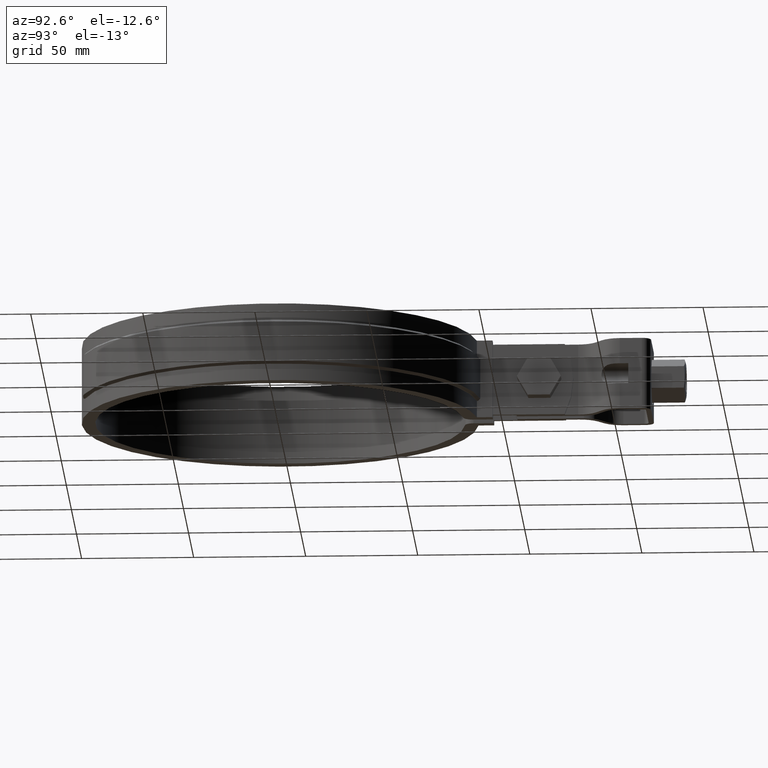
[diagram: clean part render]
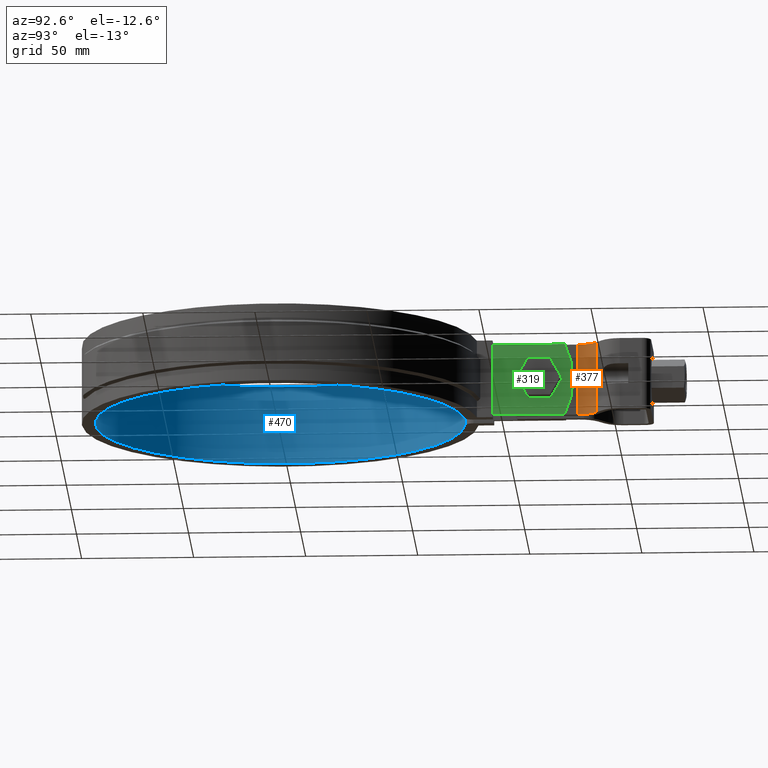
[diagram: same view with three faces highlighted in distinct colors, each labeled with its STEP entity id]
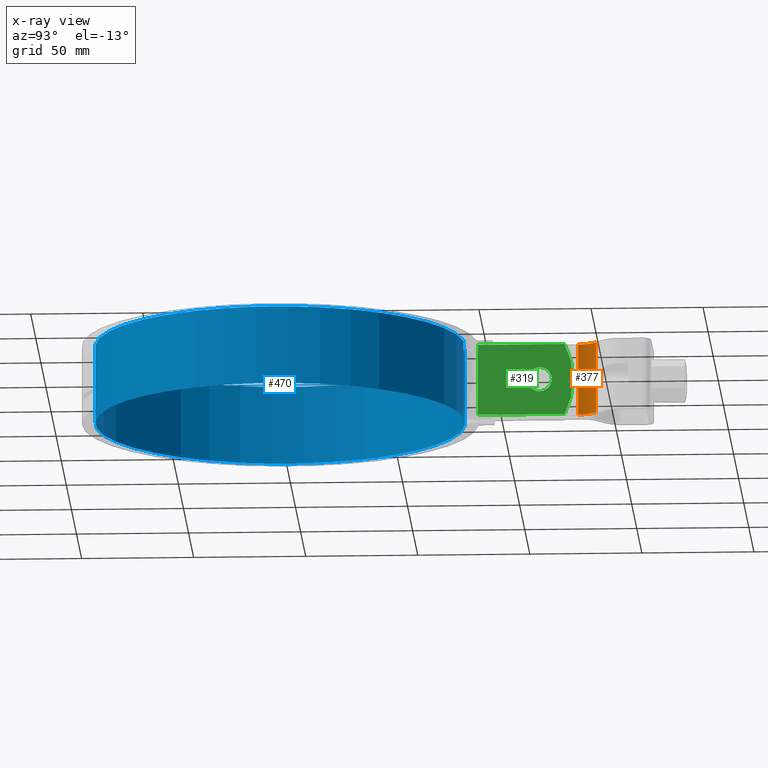
[diagram: x-ray of the same camera — body ghosted, the three highlighted faces saturated]
A machine part, auxiliary view with three faces highlighted in distinct colors.
The next image is the same camera in x-ray (body ghosted, the three faces saturated) — at least one of them is partly hidden behind the body in this view.
Their STEP definitions:

[orange] entity #377 — the highlighted cylindrical surface (edge-blend (fillet) strip) has radius 10 mm, axis along (-0, 0, 1).
#377 = ADVANCED_FACE( '', ( #627 ), #628, .F. );
#627 = FACE_OUTER_BOUND( '', #1381, .T. );
#628 = CYLINDRICAL_SURFACE( '', #1382, 9.99999999999801 );
#1381 = EDGE_LOOP( '', ( #3324, #3325, #3326, #3327 ) );
#1382 = AXIS2_PLACEMENT_3D( '', #3328, #3329, #3330 );
#3324 = ORIENTED_EDGE( '', *, *, #5173, .F. );
#3325 = ORIENTED_EDGE( '', *, *, #5129, .F. );
#3326 = ORIENTED_EDGE( '', *, *, #5077, .T. );
#3327 = ORIENTED_EDGE( '', *, *, #5186, .T. );
#3328 = CARTESIAN_POINT( '', ( 15.0000000000000, 133.144549009249, -31.9999999999894 ) );
#3329 = DIRECTION( '', ( -9.11521279052786E-016, 1.75137682134619E-013, 1.00000000000000 ) );
#3330 = DIRECTION( '', ( -3.03451482752472E-016, 1.00000000000000, -1.75137682134619E-013 ) );
#5077 = EDGE_CURVE( '', #5650, #5648, #5651, .F. );
#5129 = EDGE_CURVE( '', #5650, #5740, #5743, .T. );
#5173 = EDGE_CURVE( '', #5740, #5810, #5811, .F. );
#5186 = EDGE_CURVE( '', #5648, #5810, #5828, .T. );
#5648 = VERTEX_POINT( '', #7526 );
#5650 = VERTEX_POINT( '', #7529 );
#5651 = CIRCLE( '', #7530, 9.99999999999801 );
#5740 = VERTEX_POINT( '', #7696 );
#5743 = LINE( '', #7700, #7701 );
#5810 = VERTEX_POINT( '', #7833 );
#5811 = CIRCLE( '', #7834, 9.99999999999801 );
#5828 = LINE( '', #7893, #7894 );
#7526 = CARTESIAN_POINT( '', ( 9.26423563648961, 141.336069452137, -31.9999999999909 ) );
#7529 = CARTESIAN_POINT( '', ( 5.00000000000000, 133.144549009249, -31.9999999999894 ) );
#7530 = AXIS2_PLACEMENT_3D( '', #9704, #9705, #9706 );
#7696 = CARTESIAN_POINT( '', ( 4.99999999999999, 133.144549009255, 4.38538094726937E-012 ) );
#7700 = CARTESIAN_POINT( '', ( 5.00000000000000, 133.144549009249, -31.9999999999894 ) );
#7701 = VECTOR( '', #9793, 1000.00000000000 );
#7833 = CARTESIAN_POINT( '', ( 9.26423563648958, 141.336069452143, 2.94928087842121E-012 ) );
#7834 = AXIS2_PLACEMENT_3D( '', #9863, #9864, #9865 );
#7893 = CARTESIAN_POINT( '', ( 9.26423563648953, 141.336069452137, -31.9999999999908 ) );
#7894 = VECTOR( '', #9884, 1000.00000000000 );
#9704 = CARTESIAN_POINT( '', ( 15.0000000000000, 133.144549009249, -31.9999999999894 ) );
#9705 = DIRECTION( '', ( -1.59641724029688E-028, 1.75137682134619E-013, 1.00000000000000 ) );
#9706 = DIRECTION( '', ( 0.000000000000000, -1.00000000000000, 1.75137682134619E-013 ) );
#9793 = DIRECTION( '', ( -9.11521279052786E-016, 1.75137682134619E-013, 1.00000000000000 ) );
#9863 = CARTESIAN_POINT( '', ( 15.0000000000000, 133.144549009255, 4.38538094726937E-012 ) );
#9864 = DIRECTION( '', ( -1.59641724029688E-028, 1.75137682134619E-013, 1.00000000000000 ) );
#9865 = DIRECTION( '', ( 0.000000000000000, -1.00000000000000, 1.75137682134619E-013 ) );
#9884 = DIRECTION( '', ( -9.11521279052786E-016, 1.75137682134619E-013, 1.00000000000000 ) );

[blue] entity #470 — the highlighted cylindrical surface (partial cylindrical patch) has radius 82.5 mm, axis along (0, 0, 1).
#470 = ADVANCED_FACE( '', ( #834 ), #835, .F. );
#834 = FACE_OUTER_BOUND( '', #1961, .T. );
#835 = CYLINDRICAL_SURFACE( '', #1962, 82.5000000000000 );
#1961 = EDGE_LOOP( '', ( #4820, #4821, #4822, #4823 ) );
#1962 = AXIS2_PLACEMENT_3D( '', #4824, #4825, #4826 );
#4820 = ORIENTED_EDGE( '', *, *, #5420, .F. );
#4821 = ORIENTED_EDGE( '', *, *, #5434, .F. );
#4822 = ORIENTED_EDGE( '', *, *, #5378, .T. );
#4823 = ORIENTED_EDGE( '', *, *, #5435, .T. );
#4824 = CARTESIAN_POINT( '', ( 0.000000000000000, 0.000000000000000, -33.5000000000000 ) );
#4825 = DIRECTION( '', ( 0.000000000000000, 0.000000000000000, 1.00000000000000 ) );
#4826 = DIRECTION( '', ( 0.000000000000000, 1.00000000000000, 0.000000000000000 ) );
#5378 = EDGE_CURVE( '', #6159, #6157, #6160, .F. );
#5420 = EDGE_CURVE( '', #6227, #6229, #6230, .F. );
#5434 = EDGE_CURVE( '', #6159, #6227, #6252, .T. );
#5435 = EDGE_CURVE( '', #6157, #6229, #6253, .T. );
#6157 = VERTEX_POINT( '', #9388 );
#6159 = VERTEX_POINT( '', #9390 );
#6160 = CIRCLE( '', #9391, 82.5000000000000 );
#6227 = VERTEX_POINT( '', #9492 );
#6229 = VERTEX_POINT( '', #9494 );
#6230 = CIRCLE( '', #9495, 82.5000000000000 );
#6252 = LINE( '', #9527, #9528 );
#6253 = LINE( '', #9529, #9530 );
#9388 = CARTESIAN_POINT( '', ( -7.43930635838154, 82.1639015681835, -33.5000000000000 ) );
#9390 = CARTESIAN_POINT( '', ( 7.43930635838153, 82.1639015681835, -33.5000000000000 ) );
#9391 = AXIS2_PLACEMENT_3D( '', #10119, #10120, #10121 );
#9492 = CARTESIAN_POINT( '', ( 7.43930635838153, 82.1639015681835, 1.50000000000000 ) );
#9494 = CARTESIAN_POINT( '', ( -7.43930635838155, 82.1639015681835, 1.50000000000000 ) );
#9495 = AXIS2_PLACEMENT_3D( '', #10188, #10189, #10190 );
#9527 = CARTESIAN_POINT( '', ( 7.43930635838155, 82.1639015681835, -33.5000000000000 ) );
#9528 = VECTOR( '', #10213, 1000.00000000000 );
#9529 = CARTESIAN_POINT( '', ( -7.43930635838159, 82.1639015681835, -33.5000000000000 ) );
#9530 = VECTOR( '', #10214, 1000.00000000000 );
#10119 = CARTESIAN_POINT( '', ( 0.000000000000000, 0.000000000000000, -33.5000000000000 ) );
#10120 = DIRECTION( '', ( 0.000000000000000, 0.000000000000000, 1.00000000000000 ) );
#10121 = DIRECTION( '', ( 1.00000000000000, 0.000000000000000, 0.000000000000000 ) );
#10188 = CARTESIAN_POINT( '', ( 0.000000000000000, 0.000000000000000, 1.50000000000000 ) );
#10189 = DIRECTION( '', ( 0.000000000000000, 0.000000000000000, 1.00000000000000 ) );
#10190 = DIRECTION( '', ( 1.00000000000000, 0.000000000000000, 0.000000000000000 ) );
#10213 = DIRECTION( '', ( 0.000000000000000, 0.000000000000000, 1.00000000000000 ) );
#10214 = DIRECTION( '', ( 0.000000000000000, 0.000000000000000, 1.00000000000000 ) );

[green] entity #319 — the highlighted planar face has unit normal (1, 0, 0).
#319 = ADVANCED_FACE( '', ( #498, #499 ), #500, .T. );
#498 = FACE_OUTER_BOUND( '', #879, .T. );
#499 = FACE_BOUND( '', #880, .T. );
#500 = PLANE( '', #881 );
#879 = EDGE_LOOP( '', ( #2406, #2407, #2408, #2409 ) );
#880 = EDGE_LOOP( '', ( #2410 ) );
#881 = AXIS2_PLACEMENT_3D( '', #2411, #2412, #2413 );
#2406 = ORIENTED_EDGE( '', *, *, #4993, .T. );
#2407 = ORIENTED_EDGE( '', *, *, #4994, .T. );
#2408 = ORIENTED_EDGE( '', *, *, #4985, .F. );
#2409 = ORIENTED_EDGE( '', *, *, #4995, .T. );
#2410 = ORIENTED_EDGE( '', *, *, #4996, .F. );
#2411 = CARTESIAN_POINT( '', ( 6.50000000000000, 130.972813742386, 4.33680868994202E-016 ) );
#2412 = DIRECTION( '', ( 1.00000000000000, 2.45817796916886E-049, 3.92411941311539E-033 ) );
#2413 = DIRECTION( '', ( -3.79822709830392E-065, 1.00000000000000, -6.26427921880514E-017 ) );
#4985 = EDGE_CURVE( '', #5486, #5488, #5489, .F. );
#4993 = EDGE_CURVE( '', #5502, #5503, #5504, .F. );
#4994 = EDGE_CURVE( '', #5503, #5488, #5505, .T. );
#4995 = EDGE_CURVE( '', #5486, #5502, #5506, .T. );
#4996 = EDGE_CURVE( '', #5507, #5507, #5508, .T. );
#5486 = VERTEX_POINT( '', #6563 );
#5488 = VERTEX_POINT( '', #6566 );
#5489 = LINE( '', #6567, #6568 );
#5502 = VERTEX_POINT( '', #6584 );
#5503 = VERTEX_POINT( '', #6585 );
#5504 = LINE( '', #6586, #6587 );
#5505 = LINE( '', #6588, #6589 );
#5506 = CIRCLE( '', #6590, 36.0000000000000 );
#5507 = VERTEX_POINT( '', #6591 );
#5508 = CIRCLE( '', #6592, 5.50000000000000 );
#6563 = CARTESIAN_POINT( '', ( 6.50000000000000, 127.221844735580, -32.0000000000000 ) );
#6566 = CARTESIAN_POINT( '', ( 6.50000000000001, 88.5437744847147, -32.0000000000000 ) );
#6567 = CARTESIAN_POINT( '', ( 6.50000000000000, 130.972813742385, -32.0000000000000 ) );
#6568 = VECTOR( '', #9596, 1000.00000000000 );
#6584 = CARTESIAN_POINT( '', ( 6.50000000000000, 127.221844735579, 1.08420217248551E-016 ) );
#6585 = CARTESIAN_POINT( '', ( 6.50000000000001, 88.5437744847147, 4.33680868994202E-016 ) );
#6586 = CARTESIAN_POINT( '', ( 6.50000000000000, 130.972813742386, 4.33680868994202E-016 ) );
#6587 = VECTOR( '', #9612, 1000.00000000000 );
#6588 = CARTESIAN_POINT( '', ( 6.50000000000001, 88.5437744847147, -32.0000000000000 ) );
#6589 = VECTOR( '', #9613, 1000.00000000000 );
#6590 = AXIS2_PLACEMENT_3D( '', #9614, #9615, #9616 );
#6591 = CARTESIAN_POINT( '', ( 6.50000000000000, 115.972813742385, -21.5000000000000 ) );
#6592 = AXIS2_PLACEMENT_3D( '', #9617, #9618, #9619 );
#9596 = DIRECTION( '', ( -2.45817796916886E-049, 1.00000000000000, 0.000000000000000 ) );
#9612 = DIRECTION( '', ( -2.45817796916886E-049, 1.00000000000000, 0.000000000000000 ) );
#9613 = DIRECTION( '', ( 0.000000000000000, 0.000000000000000, -1.00000000000000 ) );
#9614 = CARTESIAN_POINT( '', ( 6.50000000000001, 94.9728137423853, -16.0000000000001 ) );
#9615 = DIRECTION( '', ( 1.00000000000000, 2.45817796916886E-049, 3.92411941311539E-033 ) );
#9616 = DIRECTION( '', ( 3.92411941311539E-033, 0.000000000000000, -1.00000000000000 ) );
#9617 = CARTESIAN_POINT( '', ( 6.50000000000000, 115.972813742385, -16.0000000000000 ) );
#9618 = DIRECTION( '', ( 1.00000000000000, 2.45817796916886E-049, 3.92411941311539E-033 ) );
#9619 = DIRECTION( '', ( 3.92411941311539E-033, 0.000000000000000, -1.00000000000000 ) );